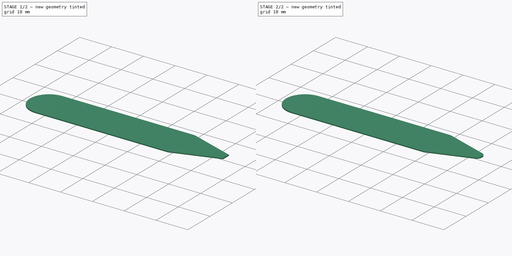
[diagram: build sequence overview — one tinted view per stage of 2, left to right]
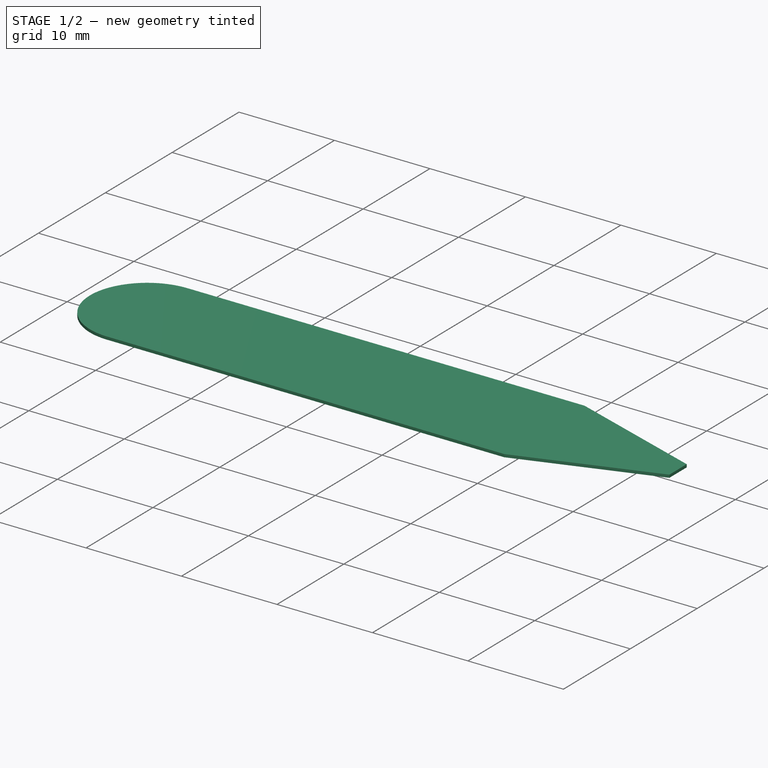
[diagram: stage 1 of 2 — iso view after this stage's code; geometry added in this stage tinted green]
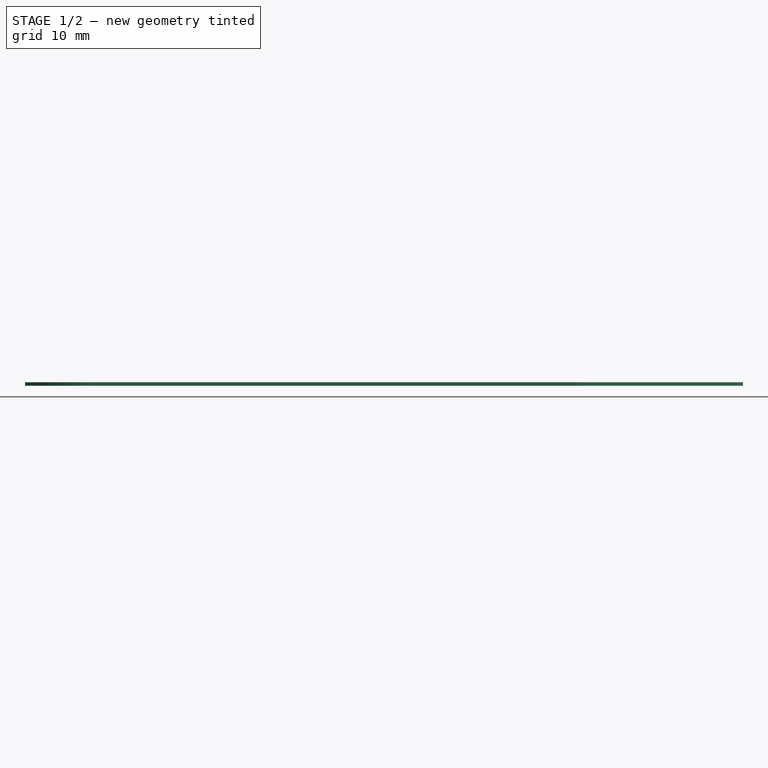
[diagram: stage 1 of 2 — front view after this stage's code; geometry added in this stage tinted green]
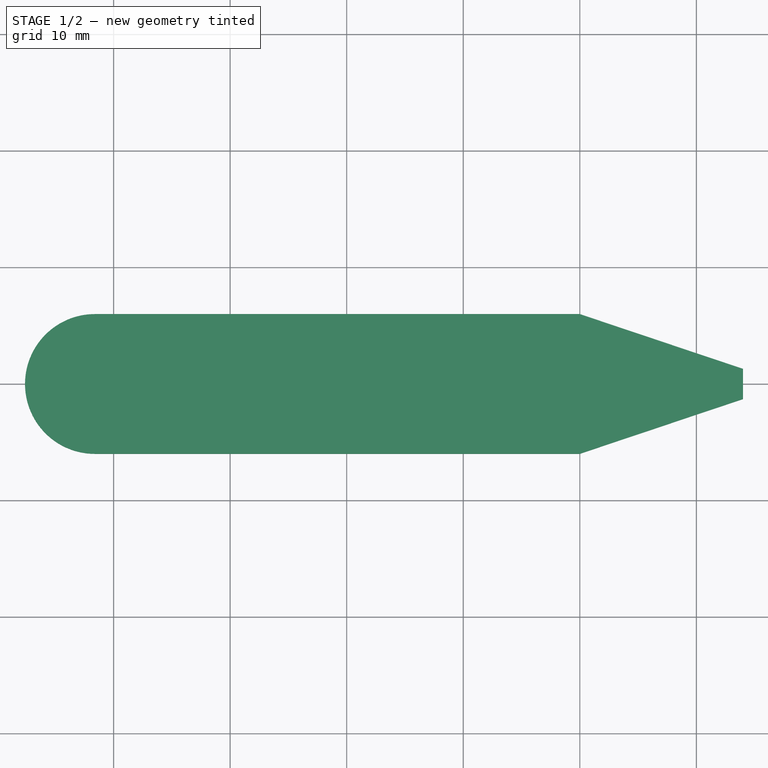
[diagram: stage 1 of 2 — top view after this stage's code; geometry added in this stage tinted green]
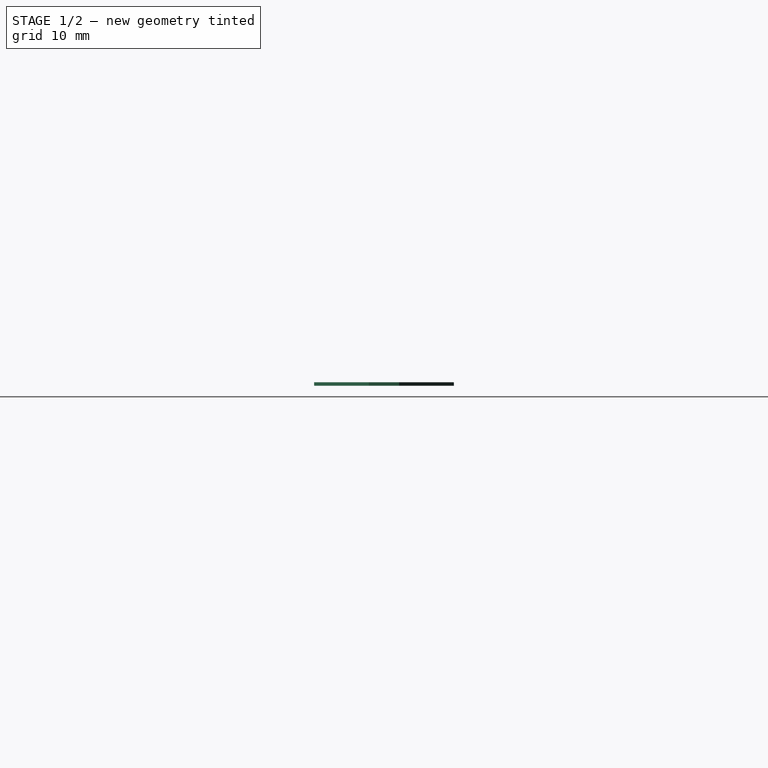
[diagram: stage 1 of 2 — right view after this stage's code; geometry added in this stage tinted green]
FCSTD DOCUMENT  (FreeCAD 0.15R4671 (Git))
Label: camisa_v01
License: All rights reserved
LicenseURL: http://es.wikipedia.org/wiki/Todos_los_derechos_reservados
objects: Sketcher::SketchObject×1, PartDesign::Pad×1, PartDesign::Fillet×1
note: 4 computed .brp shape members not serialized (recipe doc carries the construction recipe); baked Part::Feature solids carry a one-line shape summary decoded from their .brp

FEATURE [Sketcher::SketchObject] Sketch
  sketch-geometry (9):
    g0: LineSegment [constr] StartX=-41.6 StartY=-6 StartZ=0 EndX=-41.6 EndY=6 EndZ=0
    g1: LineSegment StartX=-41.6 StartY=6 StartZ=0 EndX=0 EndY=6 EndZ=0
    g2: LineSegment StartX=0 StartY=6 StartZ=0 EndX=14 EndY=1.3 EndZ=0
    g3: LineSegment StartX=14 StartY=1.3 StartZ=0 EndX=14 EndY=-1.3 EndZ=0
    g4: LineSegment StartX=14 StartY=-1.3 StartZ=0 EndX=0 EndY=-6 EndZ=0
    g5: LineSegment StartX=0 StartY=-6 StartZ=0 EndX=-41.6 EndY=-6 EndZ=0
    g6: GeomPoint [constr] X=-41.6 Y=0 Z=0
    g7: ArcOfCircle CenterX=-41.6 CenterY=0 CenterZ=0 NormalX=0 NormalY=0 NormalZ=1 Radius=6 StartAngle=1.57079 EndAngle=4.71239
    g8: LineSegment [constr] StartX=0 StartY=6 StartZ=0 EndX=0 EndY=-6 EndZ=0
  constraints (24):
    c: Coincident(g0,g1)
    c: Horizontal(g1)
    c: Coincident(g1,g2)
    c: Coincident(g2,g3)
    c: Vertical(g3)
    c: Coincident(g3,g4)
    c: Coincident(g4,g5)
    c: Horizontal(g5)
    c: Coincident(g5,g0)
    c: PointOnObject(g6,g-1)
    c: Symmetric(g0,g0,g-1)
    c: Coincident(g7,g6)
    c: Coincident(g7,g0)
    c: Coincident(g7,g0)
    c: DistanceY(g0,g0) = -12
    c: DistanceX(g1) = 41.6
    c: Tangent(g1,g7)
    c: Equal(g5,g1)
    c: DistanceY(g3) = -2.6
    c: Symmetric(g2,g3,g-1)
    c: Coincident(g8,g1)
    c: Coincident(g8,g4)
    c: PointOnObject(g-1,g8)
    c: DistanceX(g1,g2) = 14
FEATURE [PartDesign::Pad] Pad
  Length = 0.3
  Length2 = 100
  Sketch = -> Sketch
  Type = 0
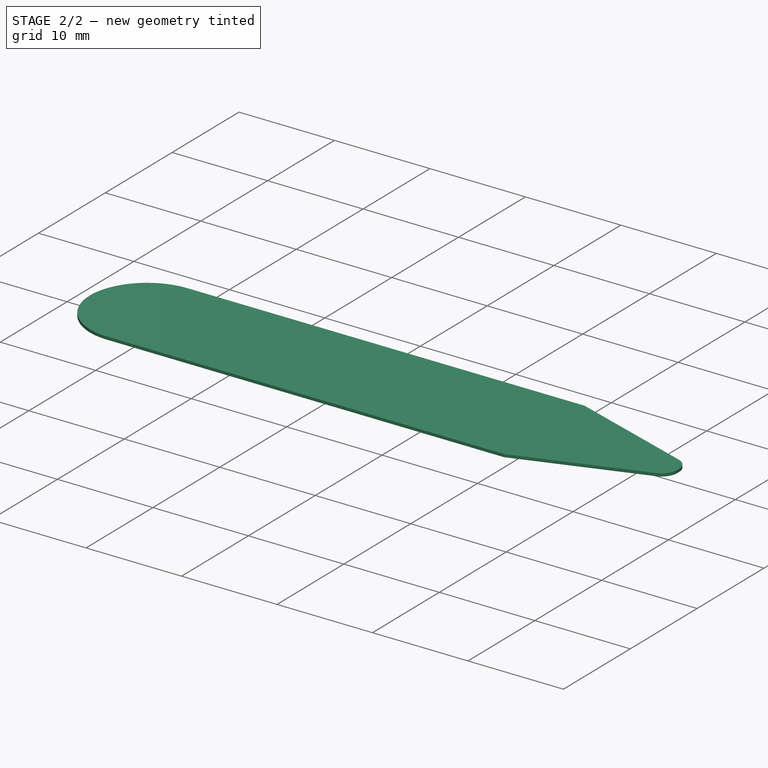
[diagram: stage 2 of 2 — iso view after this stage's code; geometry added in this stage tinted green]
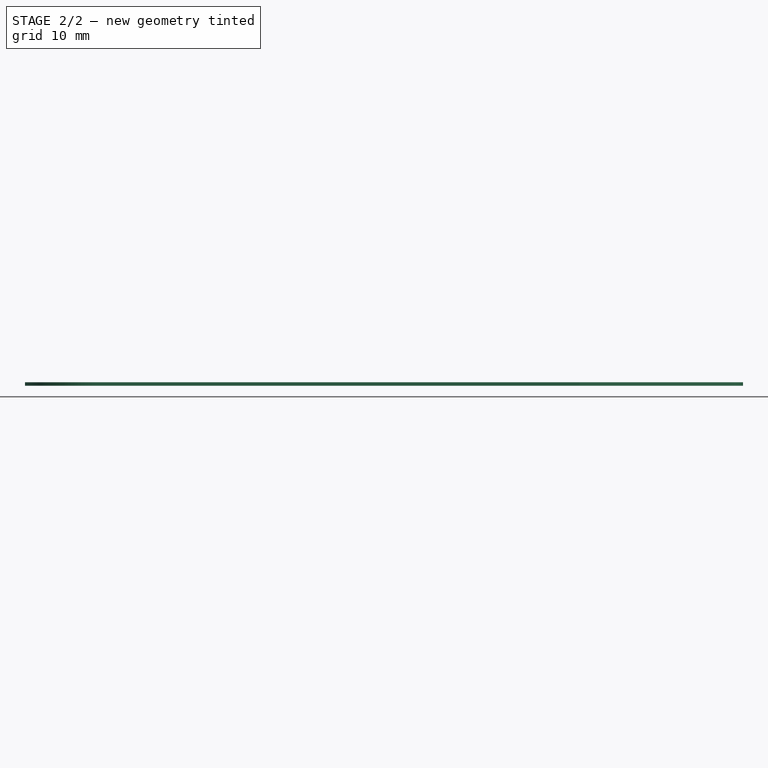
[diagram: stage 2 of 2 — front view after this stage's code; geometry added in this stage tinted green]
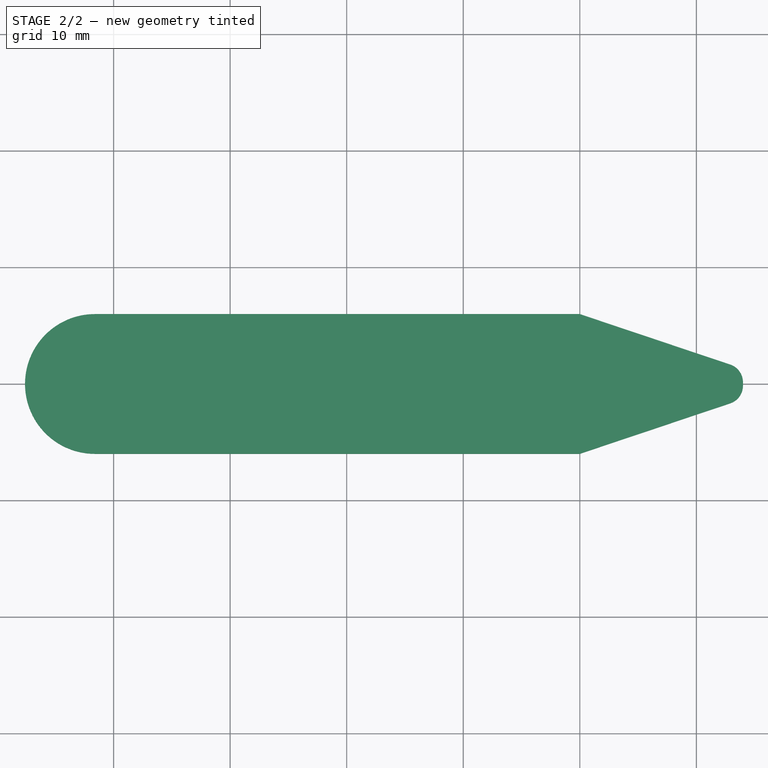
[diagram: stage 2 of 2 — top view after this stage's code; geometry added in this stage tinted green]
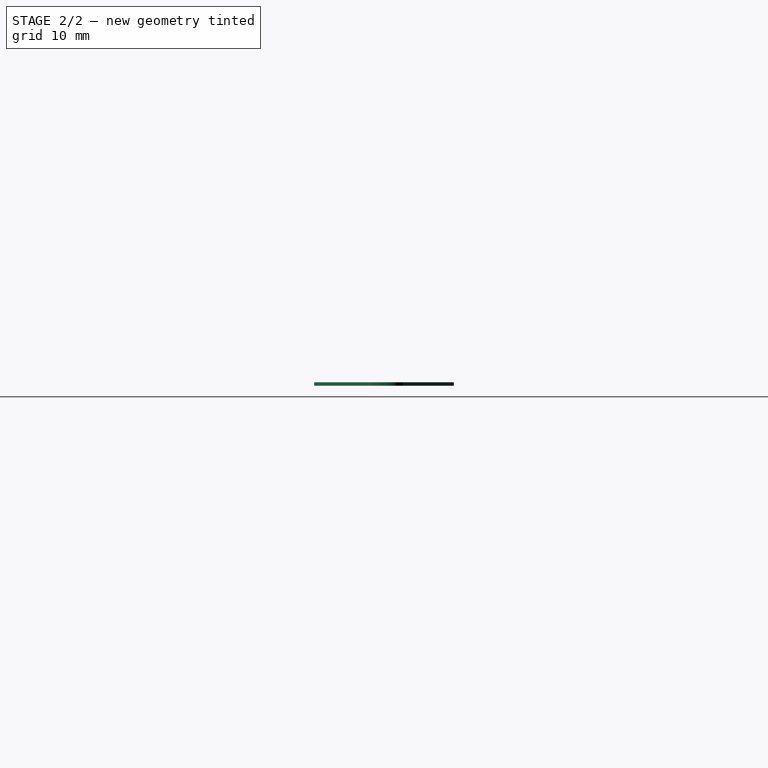
[diagram: stage 2 of 2 — right view after this stage's code; geometry added in this stage tinted green]
FEATURE [PartDesign::Fillet] Fillet
  Base = -> Pad [Edge8,Edge5]
  Radius = 1.6
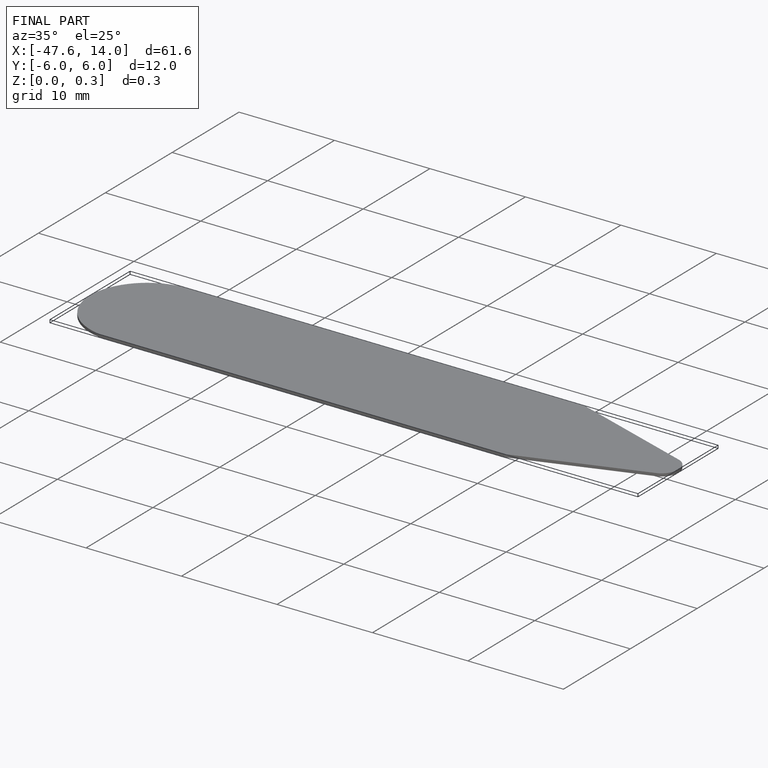
[diagram: finished part — iso view with bounding-box wireframe]
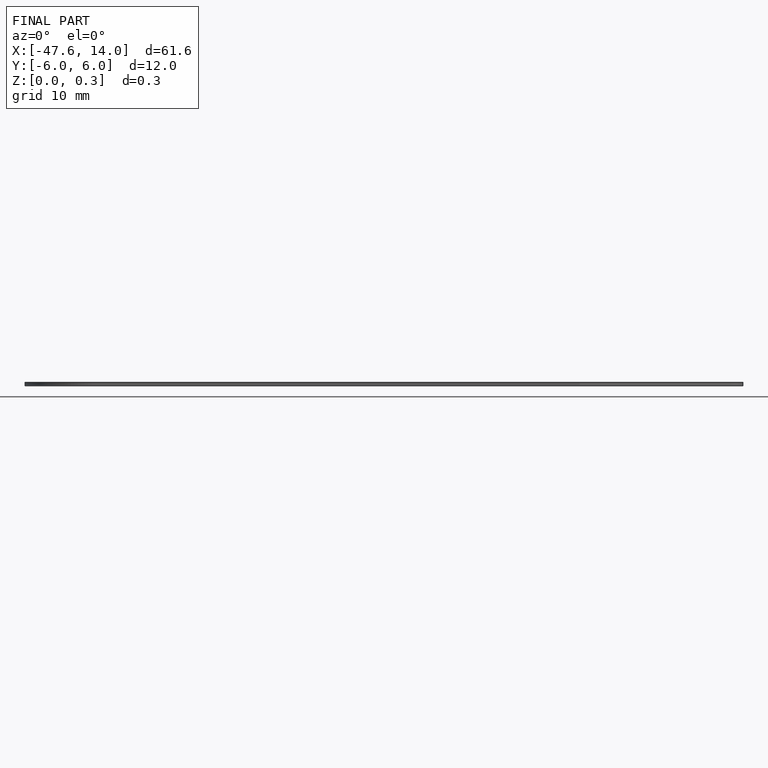
[diagram: finished part — front view with bounding-box wireframe]
